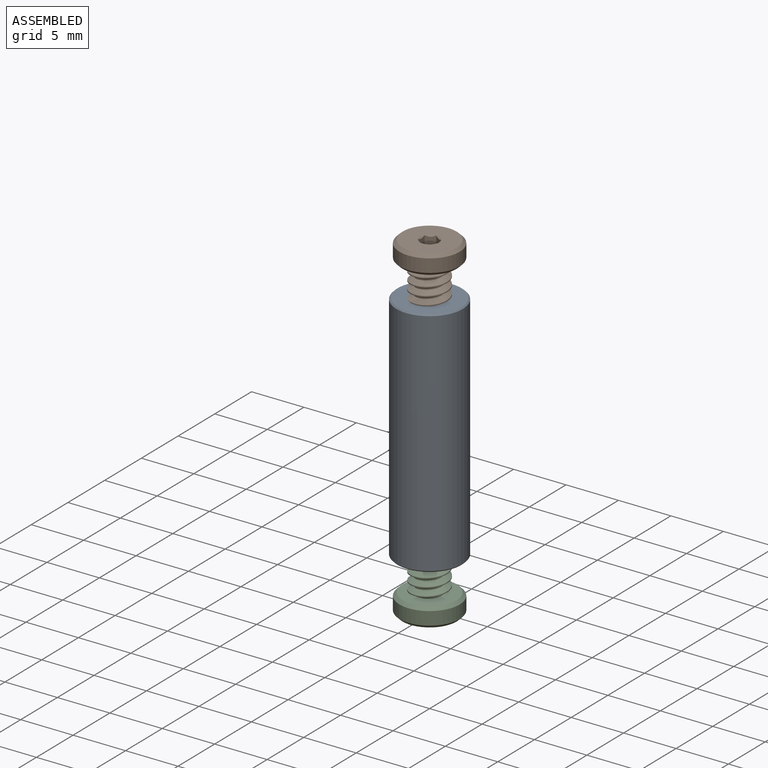
[diagram: assembled view]
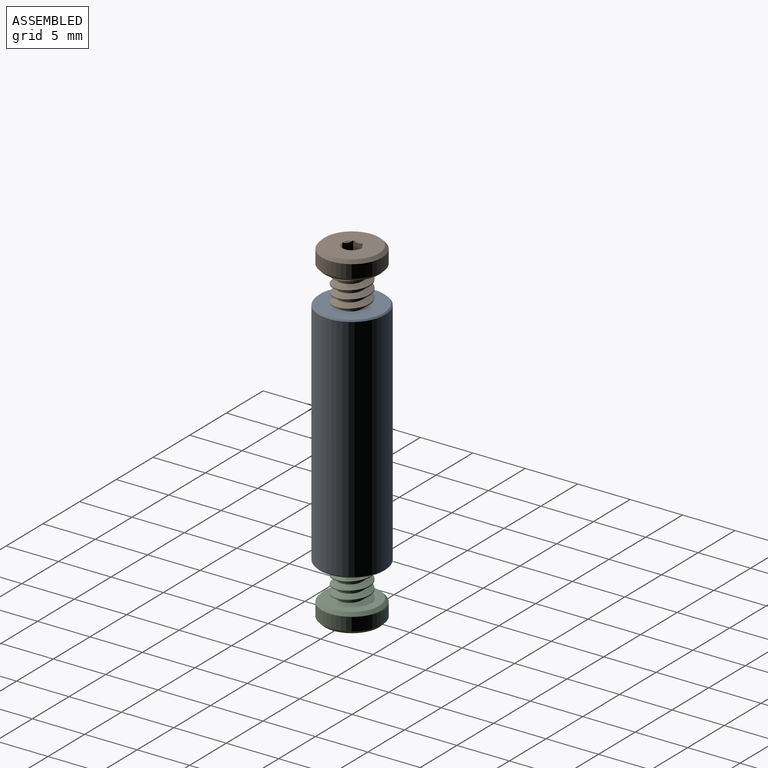
[diagram: assembled view, second angle]
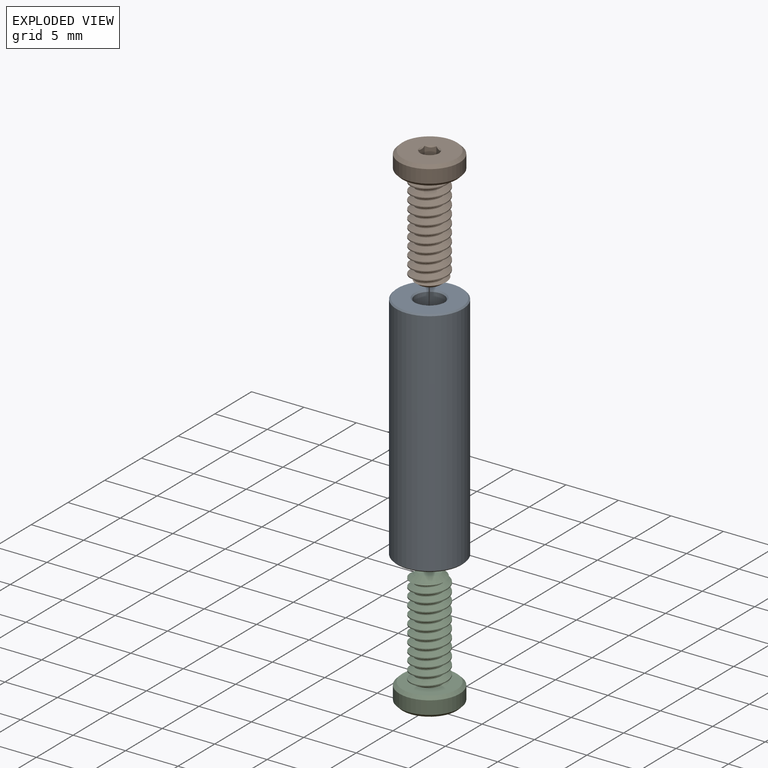
[diagram: exploded view]
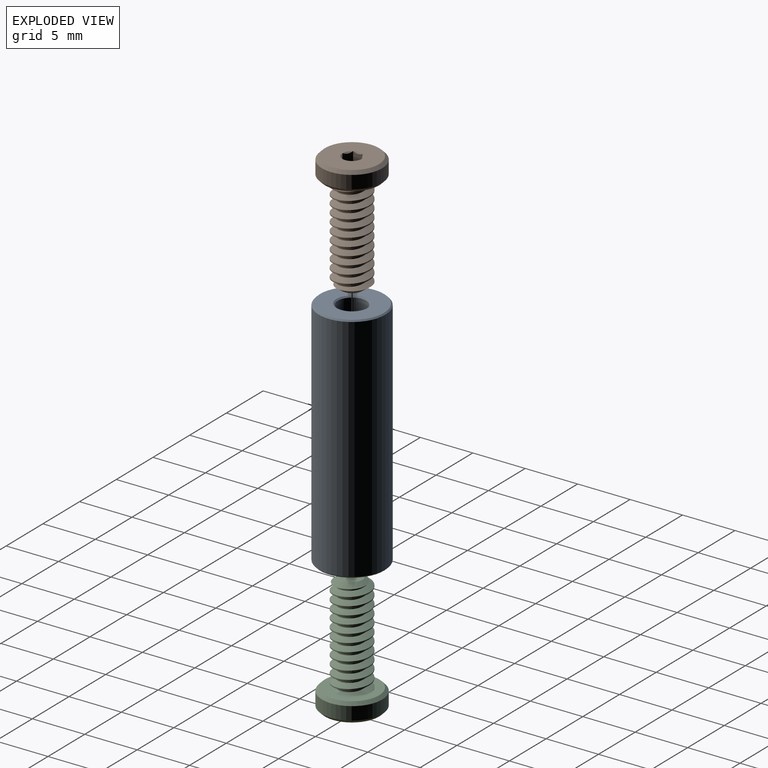
[diagram: exploded view, second angle]
ASSEMBLY  parts=3 mates=2
PART A: 11 faces, bbox 6.4x6.4x22.2 mm
  f0: cylinder r=3.17mm len=21.97mm, axis (0,0,1), area 438.3mm2, adj f7,f9
  f1: plane 6.1x6.1mm, normal (0,0,-1), area 22.3mm2, adj f7,f8
  f2: plane 6.1x6.1mm, normal (0,0,1), area 22.3mm2, adj f9,f10
  f3: cone r=1.35mm half-angle=59deg, axis (0,0,1), area 6.7mm2, adj f4
  f4: cylinder r=1.35mm len=9.27mm, axis (0,0,1), area 78.8mm2, adj f3,f10
  f5: cone r=1.35mm half-angle=59deg, axis (0,0,-1), area 6.7mm2, adj f6
  f6: cylinder r=1.35mm len=9.27mm, axis (0,0,-1), area 78.8mm2, adj f5,f8
  f7: cone r=3.17mm half-angle=45deg, axis (0,0,1), area 3.5mm2, adj f0,f1
  f8: cone r=1.35mm half-angle=45deg, axis (0,0,-1), area 1.6mm2, adj f1,f6
  f9: cone r=3.05mm half-angle=45deg, axis (0,0,-1), area 3.5mm2, adj f0,f2
  f10: cone r=1.35mm half-angle=45deg, axis (0,0,1), area 1.6mm2, adj f2,f4
PART B: 24 faces, bbox 6.1x11.9x6.1 mm
  f0: cylinder r=1.75mm len=8.99mm, axis (0,-1,0), area 20.8mm2, adj f1,f2,f4,f8
  f1: bspline ~10.09x4.05mm, area 64.7mm2, adj f0,f3,f4,f8
  f2: bspline ~9.82x4.05mm, area 64.4mm2, adj f0,f3,f4,f8
  f3: cylinder r=1.24mm len=9.35mm, axis (0,1,0), area 12.7mm2, adj f1,f2,f4,f8
  f4: cone r=0.98mm half-angle=55deg, axis (0,1,0), area 5mm2, adj f0,f1,f2,f3,f5
  f5: plane 1.97x1.97mm, normal (0,-1,0), area 3mm2, adj f4
  f6: cylinder r=2.87mm len=5.74mm, axis (0,-1,0), area 22.6mm2, adj f22,f23
  f7: plane 5.29x5.29mm, normal (0,1,0), area 18.3mm2, adj f9,f10,f11,f12,f13,f14,f22
  f8: plane 5.47x5.47mm, normal (0,-1,0), area 13.8mm2, adj f0,f1,f2,f3,f23
  f9: cone r=0.92mm half-angle=45deg, axis (0,1,0), area 0mm2, adj f7,f16
  f10: cone r=0.92mm half-angle=45deg, axis (0,1,0), area 0mm2, adj f7,f17
  f11: cone r=0.92mm half-angle=45deg, axis (0,1,0), area 0mm2, adj f7,f18
  f12: cone r=0.92mm half-angle=45deg, axis (0,1,0), area 0mm2, adj f7,f19
  f13: cone r=0.92mm half-angle=45deg, axis (0,1,0), area 0mm2, adj f7,f20
  f14: cone r=0.92mm half-angle=45deg, axis (0,1,0), area 0mm2, adj f7,f21
  f15: plane 1.83x1.59mm, normal (0,1,0), area 2.2mm2, adj f16,f17,f18,f19,f20,f21
  f16: plane 1.54x1.14mm, normal (-0.5,0,-0.87), area 1mm2, adj f9,f15,f17,f21
  f17: plane 1.54x1.27mm, normal (-1,0,0), area 1mm2, adj f10,f15,f16,f18
  f18: plane 1.54x1.14mm, normal (-0.5,0,0.87), area 1mm2, adj f11,f15,f17,f19
  f19: plane 1.54x1.14mm, normal (0.5,0,0.87), area 1mm2, adj f12,f15,f18,f20
  f20: plane 1.54x1.27mm, normal (1,0,0), area 1mm2, adj f13,f15,f19,f21
  f21: plane 1.54x1.14mm, normal (0.5,0,-0.87), area 1mm2, adj f14,f15,f16,f20
  f22: cone r=2.58mm half-angle=45deg, axis (0,-1,0), area 7mm2, adj f6,f7
  f23: cone r=2.87mm half-angle=45deg, axis (0,1,0), area 7mm2, adj f6,f8
PART C: same geometry as B
PLACE A rot(axis=(0,0,1),180deg) t=(0,0,0)mm
PLACE B rot(axis=(1,0,0),90deg) t=(0,0,4.76)mm
PLACE C rot(axis=(-1,0,0),90deg) t=(0,0,-4.76)mm
MATE fastened C.f0 <-> A.f0  axis (0,0,-1) through (0,0,-14.29)mm
MATE fastened B.f0 <-> A.f0  axis (0,0,1) through (0,0,14.29)mm
